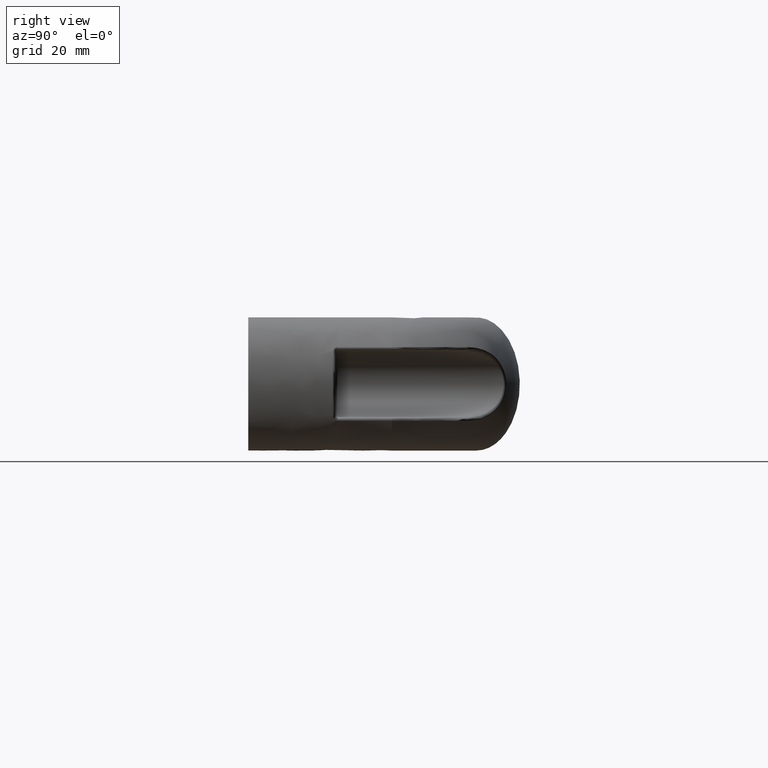
[diagram: clean part render]
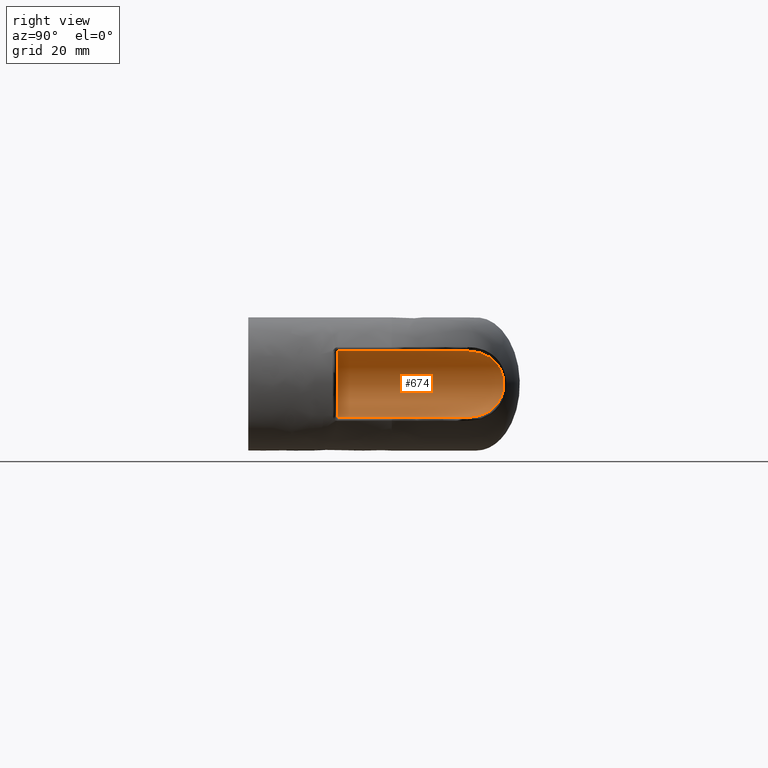
[diagram: same view with one face highlighted and labeled with its STEP entity id]
A machine part, right view. The second image highlights one B-rep face of the part: STEP entity #674.
In plain terms, the highlighted cylindrical surface (edge-blend (fillet) strip) has radius 6.5 mm, axis along (0, -1, 0).
Its self-contained STEP definition (entity closure, byte-faithful):
#38=CYLINDRICAL_SURFACE('',#731,6.5);
#55=LINE('',#1080,#77);
#60=LINE('',#1096,#82);
#77=VECTOR('',#829,25.0082159809617);
#82=VECTOR('',#836,25.0082159809617);
#113=CIRCLE('',#732,6.5);
#167=FACE_OUTER_BOUND('',#217,.T.);
#217=EDGE_LOOP('',(#495,#496,#497,#498));
#281=B_SPLINE_CURVE_WITH_KNOTS('',3,(#1098,#1099,#1100,#1101,#1102,#1103,
#1104,#1105,#1106,#1107,#1108,#1109),.UNSPECIFIED.,.F.,.F.,(4,1,1,1,1,1,
1,1,1,4),(1.97549707383848E-11,0.391019060009873,0.782038119999992,0.977547649995051,
1.17305717999011,1.36856670998517,1.56407623998023,1.95509529997035,2.34611435996046,
2.73713341995058),.UNSPECIFIED.);
#323=VERTEX_POINT('',#1072);
#325=VERTEX_POINT('',#1079);
#328=VERTEX_POINT('',#1086);
#330=VERTEX_POINT('',#1094);
#388=EDGE_CURVE('',#323,#325,#55,.T.);
#394=EDGE_CURVE('',#328,#330,#60,.T.);
#395=EDGE_CURVE('',#328,#323,#281,.T.);
#396=EDGE_CURVE('',#325,#330,#113,.T.);
#495=ORIENTED_EDGE('',*,*,#395,.F.);
#496=ORIENTED_EDGE('',*,*,#394,.T.);
#497=ORIENTED_EDGE('',*,*,#396,.F.);
#498=ORIENTED_EDGE('',*,*,#388,.F.);
#674=ADVANCED_FACE('',(#167),#38,.F.);
#731=AXIS2_PLACEMENT_3D('',#1097,#837,#838);
#732=AXIS2_PLACEMENT_3D('',#1110,#839,#840);
#829=DIRECTION('',(0.,-1.,0.));
#836=DIRECTION('',(0.,-1.,0.));
#837=DIRECTION('center_axis',(0.,-1.,0.));
#838=DIRECTION('ref_axis',(0.,0.,-1.));
#839=DIRECTION('center_axis',(0.,1.,0.));
#840=DIRECTION('ref_axis',(-1.,0.,-6.12323399573677E-17));
#1072=CARTESIAN_POINT('',(114.500000000083,42.5082159809617,-6.49999999999999));
#1079=CARTESIAN_POINT('',(114.5,17.5,-6.49999999999999));
#1080=CARTESIAN_POINT('',(114.5,53.,-6.49999999999999));
#1086=CARTESIAN_POINT('',(114.50000000009,42.5082159809617,6.50000000000001));
#1094=CARTESIAN_POINT('',(114.5,17.5,6.50000000000001));
#1096=CARTESIAN_POINT('',(114.5,53.,6.50000000000001));
#1097=CARTESIAN_POINT('Origin',(114.5,53.,9.95025524307224E-15));
#1098=CARTESIAN_POINT('Ctrl Pts',(114.500000000152,42.508215980981,6.50000000000001));
#1099=CARTESIAN_POINT('Ctrl Pts',(113.74048406963,43.5230150583374,6.50000000001775));
#1100=CARTESIAN_POINT('Ctrl Pts',(112.154820062364,45.4930538624803,6.23758983919102));
#1101=CARTESIAN_POINT('Ctrl Pts',(110.175896585605,47.6822219620325,5.03304346209162));
#1102=CARTESIAN_POINT('Ctrl Pts',(108.87200825364,49.0290312762008,3.38927944305144));
#1103=CARTESIAN_POINT('Ctrl Pts',(108.174412937577,49.7226252884737,1.81368964592205));
#1104=CARTESIAN_POINT('Ctrl Pts',(107.912467260524,49.976572447025,0.00358625812503448));
#1105=CARTESIAN_POINT('Ctrl Pts',(108.261103522793,49.6385655682001,-2.42510534193114));
#1106=CARTESIAN_POINT('Ctrl Pts',(109.785034483472,48.1165686648275,-4.80513910466099));
#1107=CARTESIAN_POINT('Ctrl Pts',(112.15094708235,45.4960537287683,-6.23092369183364));
#1108=CARTESIAN_POINT('Ctrl Pts',(113.740484069645,43.5230150583188,-6.50000000001942));
#1109=CARTESIAN_POINT('Ctrl Pts',(114.500000000166,42.5082159809617,-6.49999999999999));
#1110=CARTESIAN_POINT('Origin',(114.5,17.5,9.95025524307224E-15));